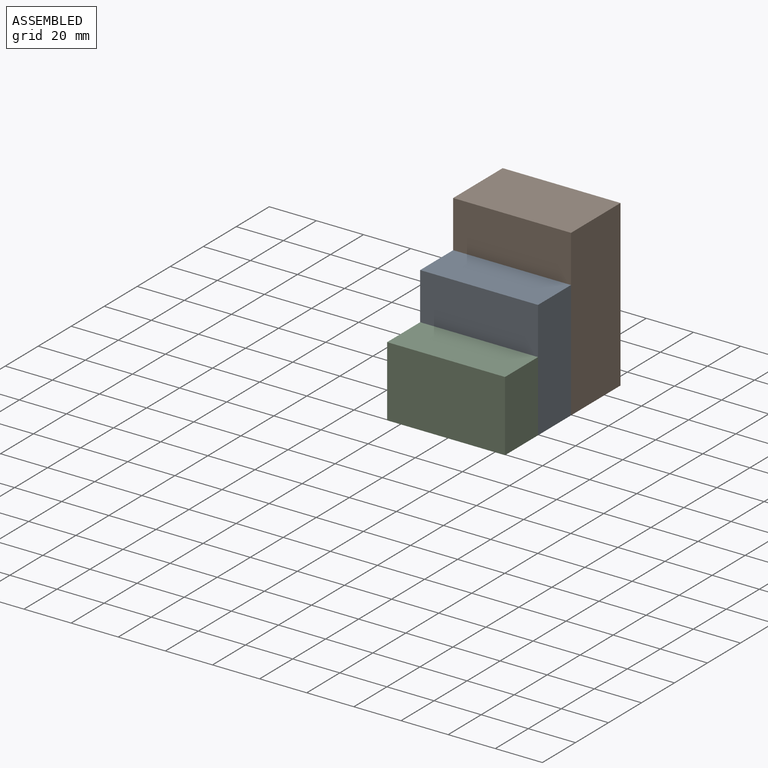
[diagram: assembled view]
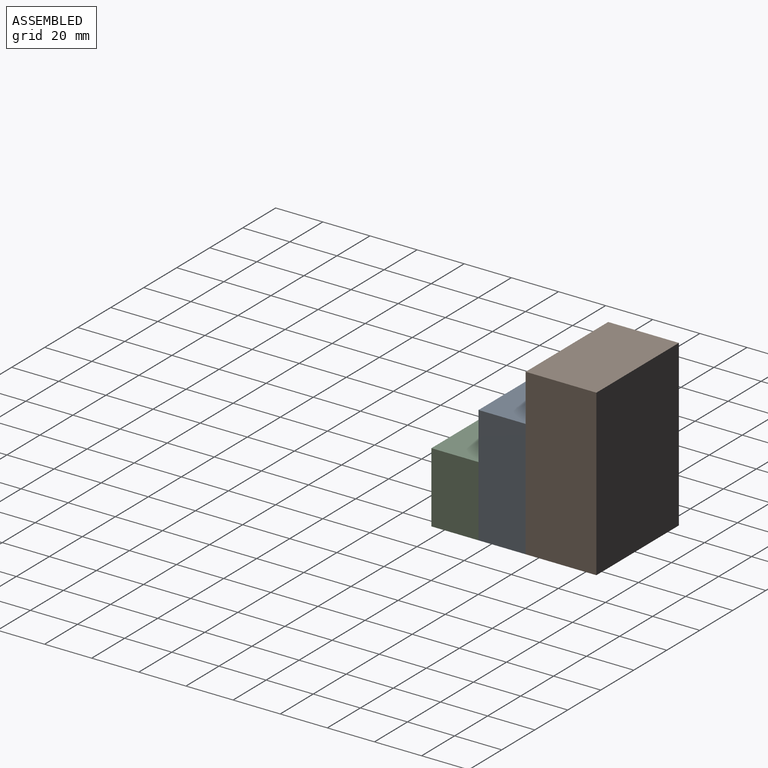
[diagram: assembled view, second angle]
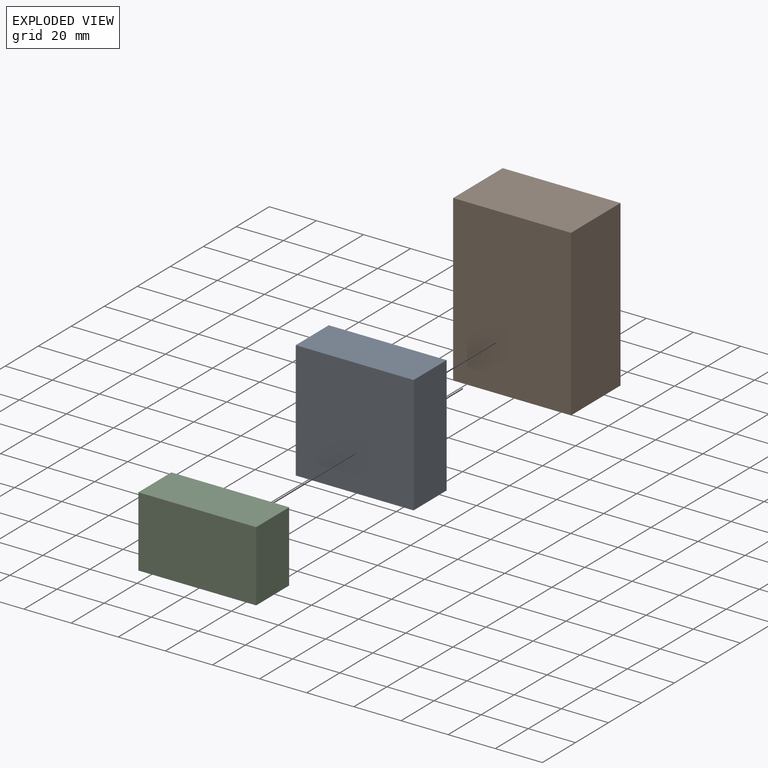
[diagram: exploded view]
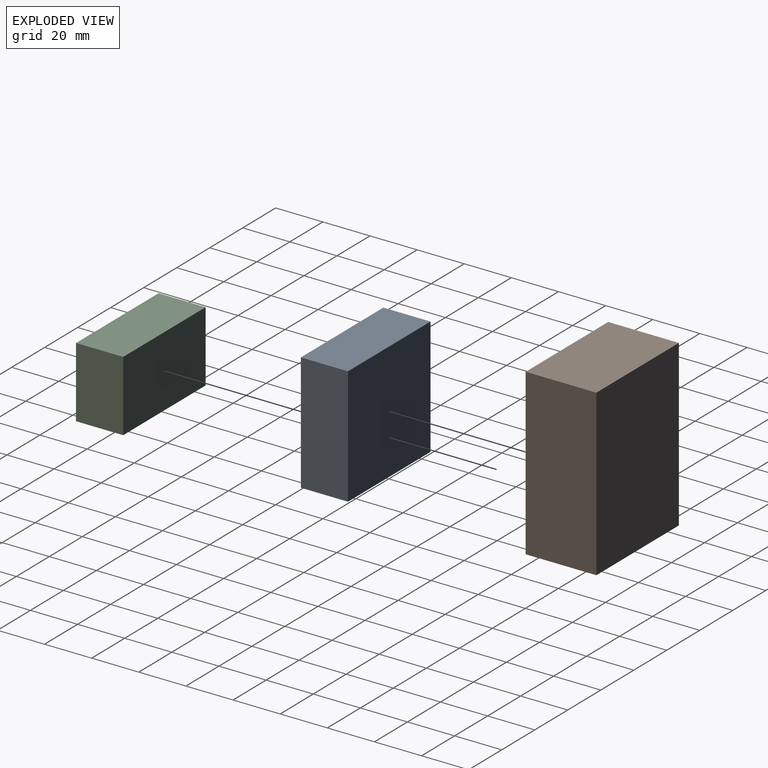
[diagram: exploded view, second angle]
ASSEMBLY  parts=3 mates=2
PART A: 6 faces, bbox 50x20x50 mm
  f0: plane 50x50mm, normal (0,1,0), area 2500mm2, adj f1,f3,f4,f5
  f1: plane 50x20mm, normal (-1,0,0), area 1000mm2, adj f0,f2,f4,f5
  f2: plane 50x50mm, normal (0,-1,0), area 2500mm2, adj f1,f3,f4,f5
  f3: plane 50x20mm, normal (1,0,0), area 1000mm2, adj f0,f2,f4,f5
  f4: plane 50x20mm, normal (0,0,1), area 1000mm2, adj f0,f1,f2,f3
  f5: plane 50x20mm, normal (0,0,-1), area 1000mm2, adj f0,f1,f2,f3
PART B: 6 faces, bbox 50x30x70 mm
  f0: plane 70x50mm, normal (0,1,0), area 3500mm2, adj f1,f3,f4,f5
  f1: plane 70x30mm, normal (-1,0,0), area 2100mm2, adj f0,f2,f4,f5
  f2: plane 70x50mm, normal (0,-1,0), area 3500mm2, adj f1,f3,f4,f5
  f3: plane 70x30mm, normal (1,0,0), area 2100mm2, adj f0,f2,f4,f5
  f4: plane 50x30mm, normal (0,0,1), area 1500mm2, adj f0,f1,f2,f3
  f5: plane 50x30mm, normal (0,0,-1), area 1500mm2, adj f0,f1,f2,f3
PART C: 6 faces, bbox 50x20x30 mm
  f0: plane 50x30mm, normal (0,1,0), area 1500mm2, adj f1,f3,f4,f5
  f1: plane 30x20mm, normal (-1,0,0), area 600mm2, adj f0,f2,f4,f5
  f2: plane 50x30mm, normal (0,-1,0), area 1500mm2, adj f1,f3,f4,f5
  f3: plane 30x20mm, normal (1,0,0), area 600mm2, adj f0,f2,f4,f5
  f4: plane 50x20mm, normal (0,0,1), area 1000mm2, adj f0,f1,f2,f3
  f5: plane 50x20mm, normal (0,0,-1), area 1000mm2, adj f0,f1,f2,f3
PLACE A t=(65.66,27.89,29.09)mm fixed
PLACE B t=(64.06,49.18,29.09)mm
PLACE C t=(59.51,5.4,29.09)mm
MATE fastened B.f2 <-> A.f0  axis (0,-1,0) through (61.43,36.65,64.09)mm
MATE fastened A.f2 <-> C.f0  axis (0,-1,0) through (61.43,16.65,54.09)mm
